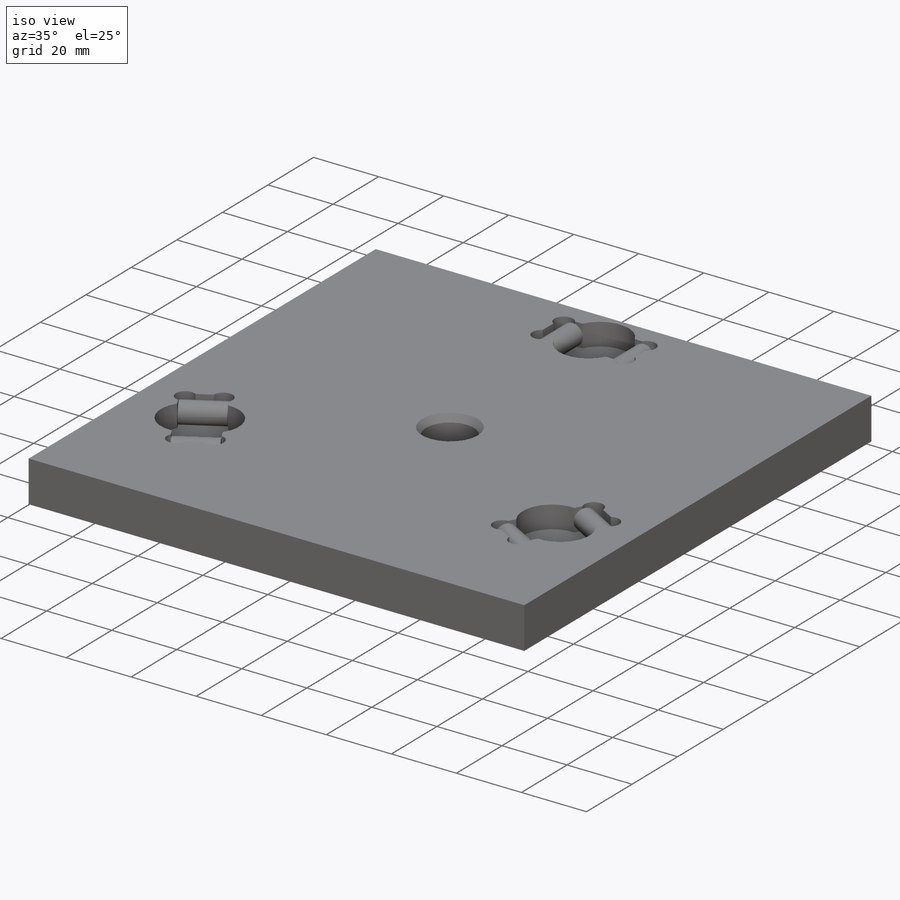
[diagram: iso view]
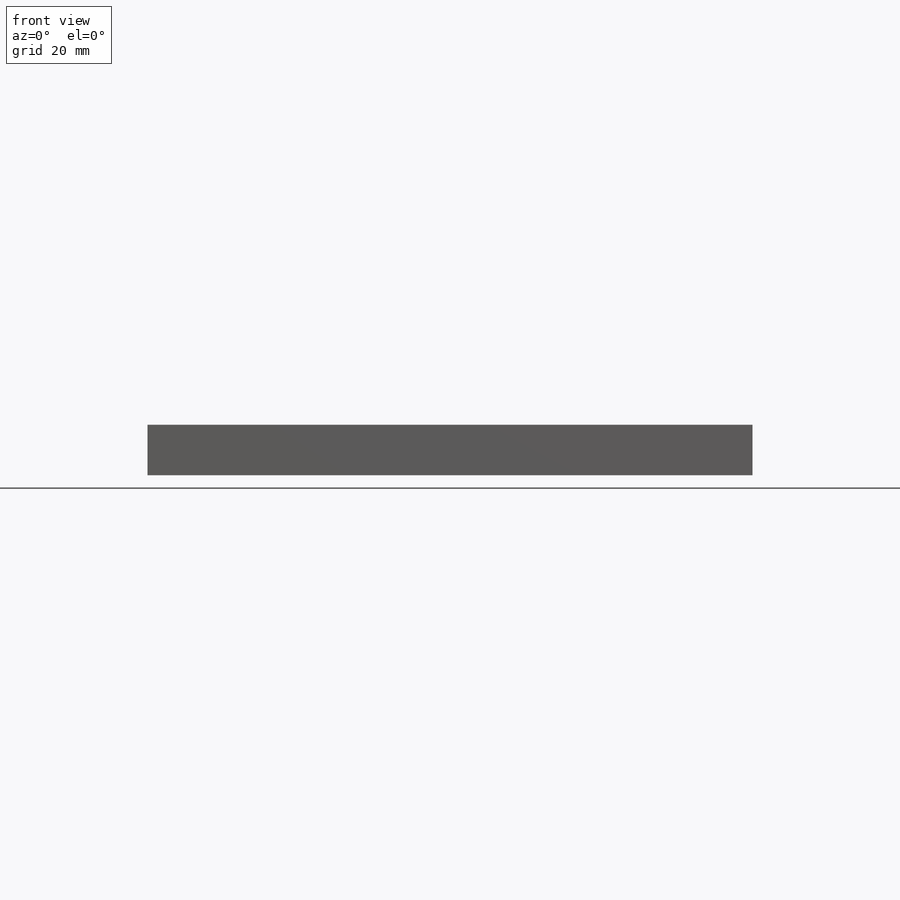
[diagram: front view]
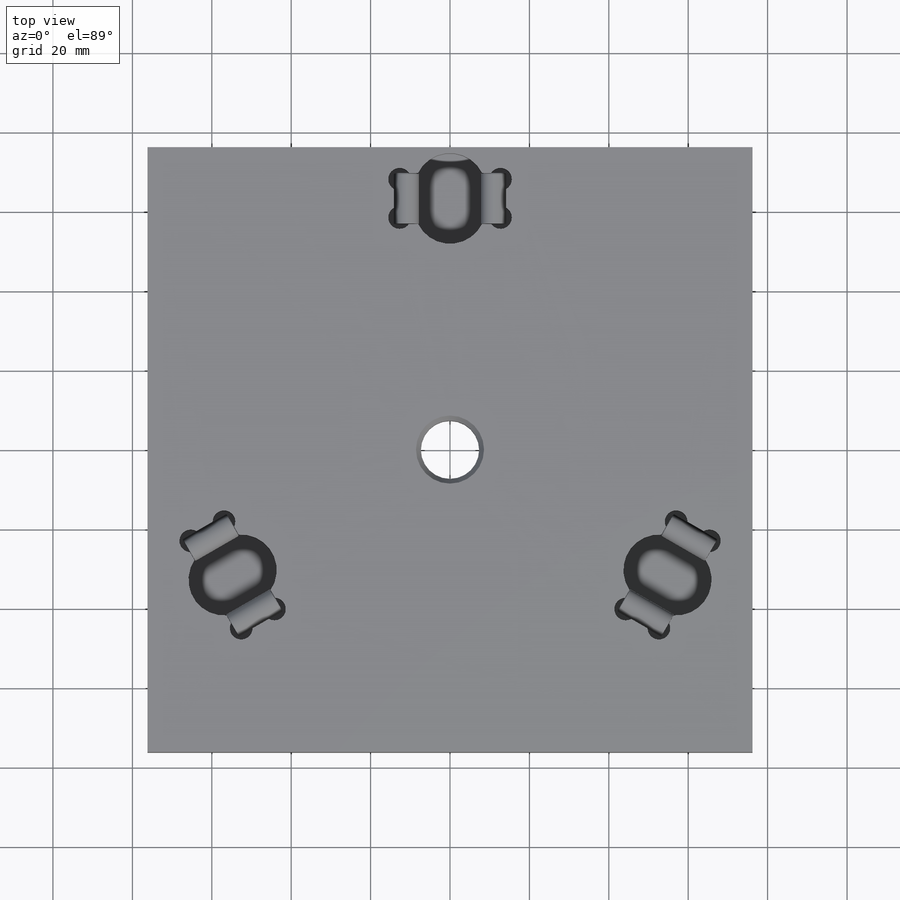
[diagram: top view]
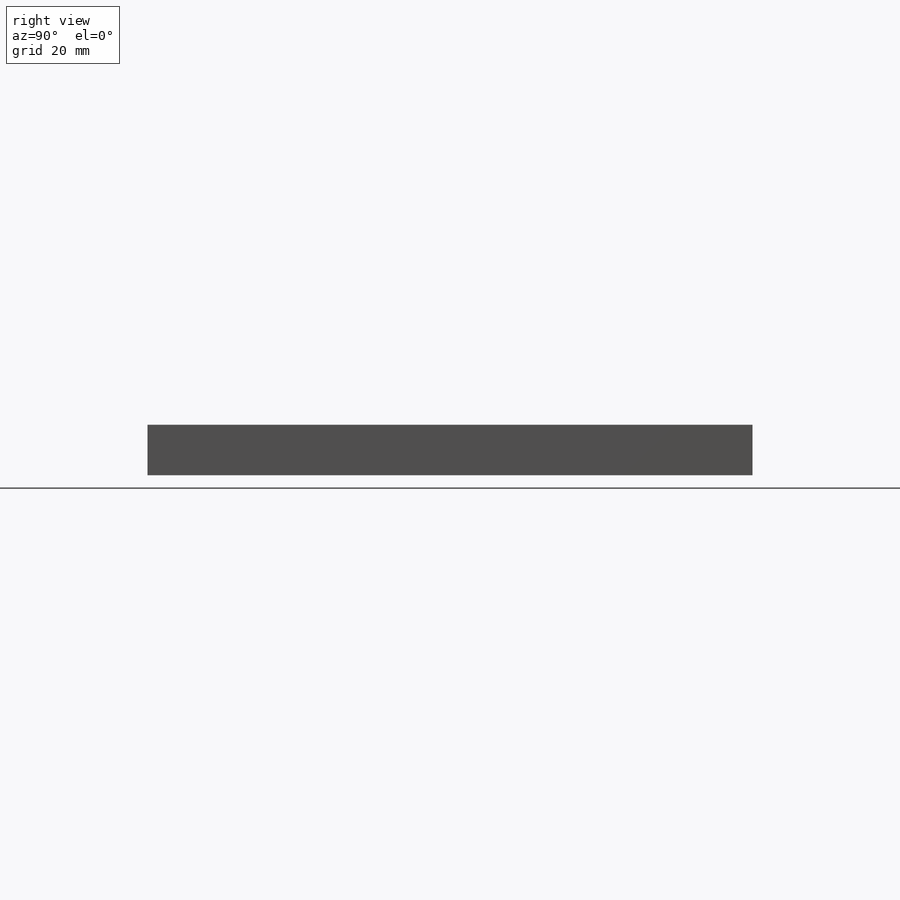
[diagram: right view]
SOLIDWORKS PART (.sldprt)
format: sldprt  version: not decoded by parser v0  size: 623,104 bytes
history: native  units: mm
features: sketch x9, plane x4, cut_extrude x3, extrude x2, hole x2, thread x2, chamfer x2, pattern_circular x2, material x1, pattern_linear x1 + 2 further entries (+8 scaffold rows collapsed)
feature tree (38):
  scaffold x8  (default folders/planes/origin — collapsed)
  material  "Material <not specified>"
  plane  "Plane X-Y"
  plane  "Plane X-Z"
  plane  "Plane Y-Z"
  "Axis - Y"
  "Axis - Z"
  sketch  "Sketch1"  dims[D1=152.4mm]
  extrude  "Extrude1"  Depth=12.7mm
  hole  "5/8-18 Tapped Hole1"  Diameter=14.68374mm Depth=12.7mm
  sketch  "Sketch3"
  sketch  "Sketch4"  dims[hole-wizard template sketch: 54 standard entries collapsed; hole parameters above]
  thread  "Hole Thread1"  Diameter=15.875mm  [1 undecoded]
  sketch  "Sketch8"  dims[c1.D1=17.78mm c1.D2=17.78mm c2.D1=8.89mm c2.D2=22.86mm c3.D1=22.86mm c3.D2=~13.363735mm c3.D3=16.129mm c3.D4=1.524mm c3.D5=12.827mm]
  cut_extrude  "Cut-Extrude1"  Depth=6.858mm
  sketch  "Sketch9"  dims[c1.D2=~5.861598mm c1.D3=5.715mm c1.D4=5.715mm c1.D1=28.2575mm c2.D2=15.367mm c2.D1=28.2575mm c2.D4=15.5575mm]
  cut_extrude  "Cut-Extrude2"  Depth=6.858mm
  plane  "Plane1"
  sketch  "Sketch10"  dims[D1=6.35mm]
  extrude  "Extrude2"  Depth=12.7mm
  chamfer  "Chamfer1"  Distance=0.127mm Angle=45deg
  chamfer  "Chamfer2"  Distance=0.127mm Angle=45deg
  pattern_circular  "CirPattern4"  Count=3 Angle=360deg
  pattern_circular  "CirPattern5"  Count=3 Angle=360deg
  hole  "1/4-20 Tapped Hole1"  Diameter=5.1054mm Depth=12.7mm
  sketch  "Sketch6"  dims[D1=12.7mm D2=12.7mm D3=63.5mm]
  sketch  "Sketch5"  dims[hole-wizard template sketch: 47 standard entries collapsed; hole parameters kept: c15.Thru Tap Drill Depth=12.7mm c15.Near C'Sink Dia.=6.35mm c15.D4=~3.666174mm c15.Near C'Sink Angle=60.0deg c15.Far C'Sink Dia.=6.35mm c15.D6=~9.919017mm c15.Far C'Sink Angle=60.0deg]
  thread  "Hole Thread2"  Diameter=6.35mm  [1 undecoded]
  pattern_linear  "LPattern1"  Count1=2 Count2=3 Spacing1=127mm Spacing2=63.5mm
  sketch  "Sketch97"  dims[c1.D1=~68.344113mm c1.D2=~68.344113mm c2.D1=3.81mm]
  cut_extrude  "Cut-Extrude25"  Depth=0.0762mm
decode coverage: 22 of 23 modeling features carry decoded parameters; 2 rows unclassified (native names shown)
note: ~ marks probable driven/reference dimensions
note: 2 parameter values undecoded
note: suppression state not decoded; provenance and decode notes live in map.json
